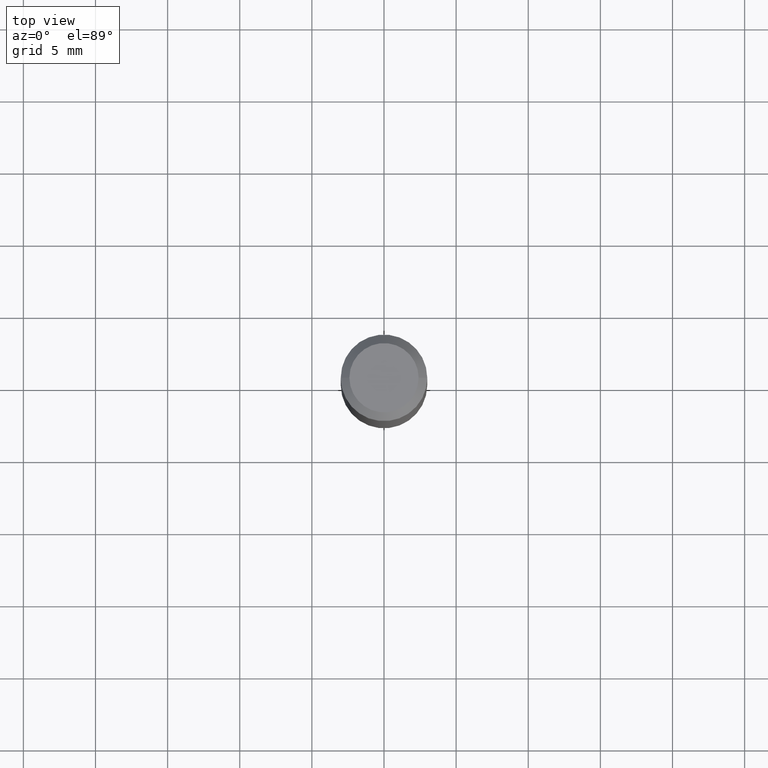
[diagram: clean part render]
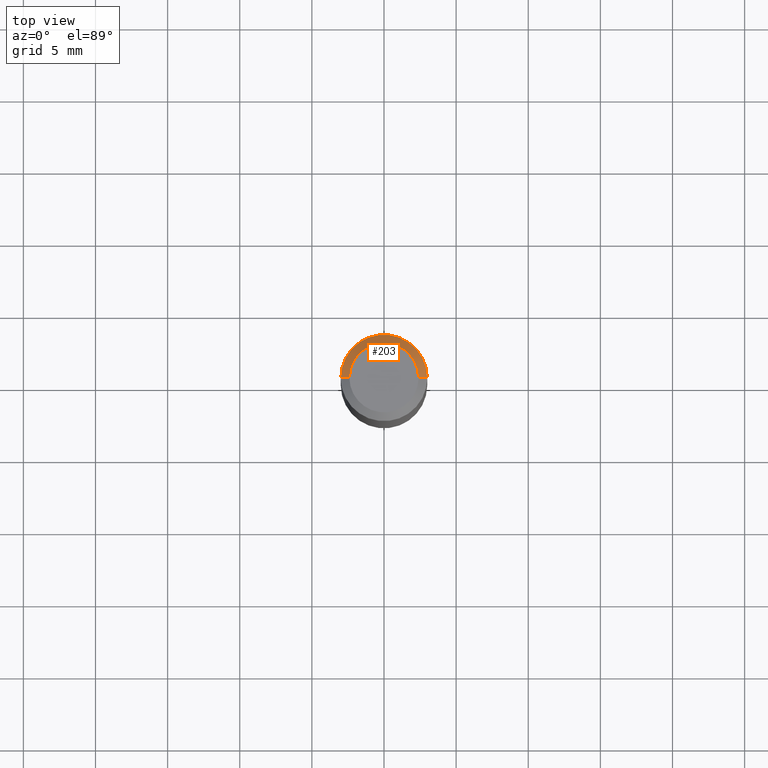
[diagram: same view with one face highlighted and labeled with its STEP entity id]
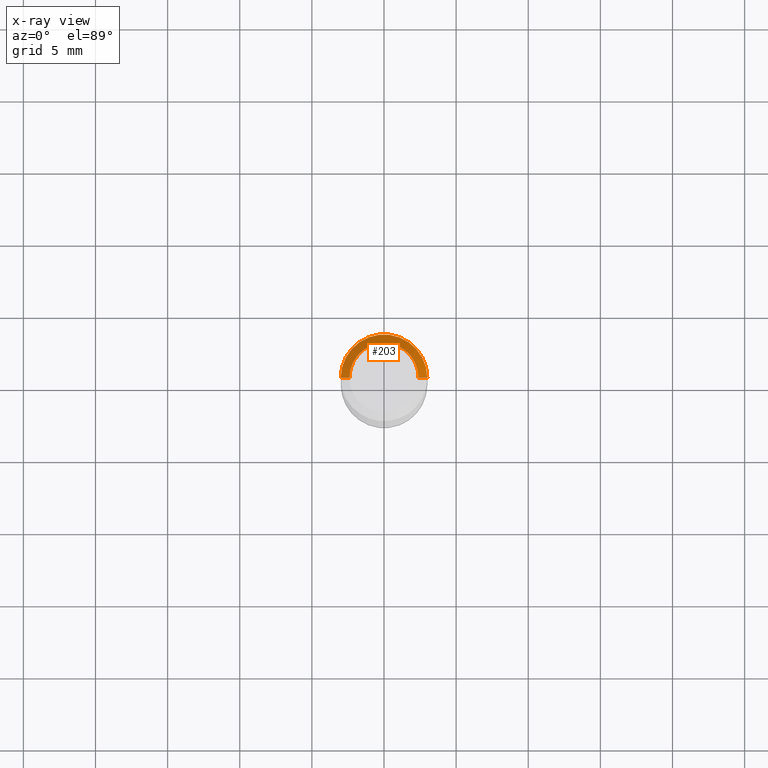
[diagram: x-ray of the same camera — body ghosted, the highlighted face saturated]
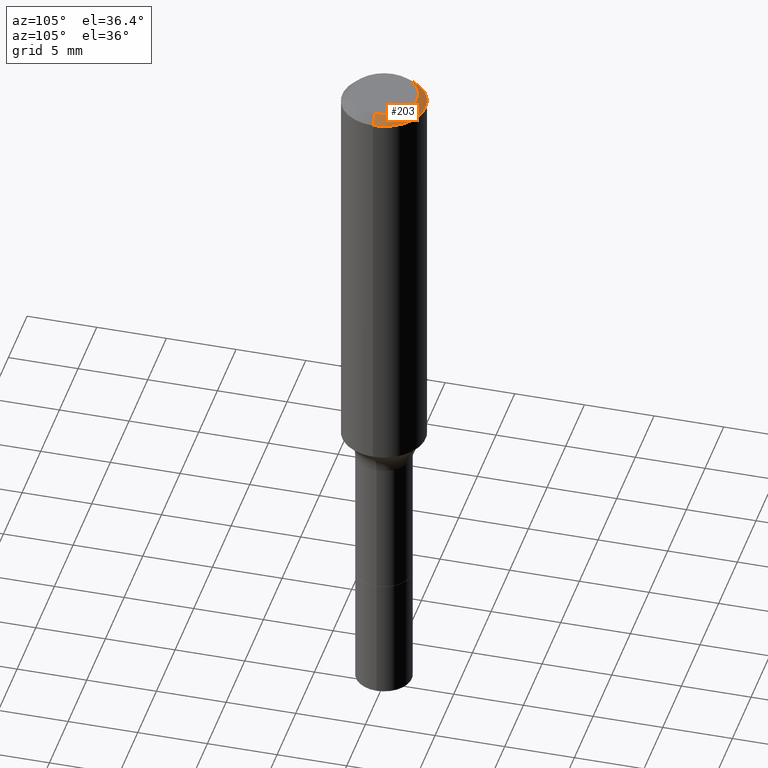
[diagram: same view with one face highlighted and labeled with its STEP entity id]
A machine part, top view. The second image highlights one B-rep face of the part: STEP entity #203.
The next image is the same camera in x-ray: the body ghosted, the highlighted face saturated — about 0% of this face is hidden behind the body in this view.
A second angle (auxiliary view) of the same face is appended — the face is thin or edge-on in the first view.
In plain terms, the highlighted conical surface has half-angle 45 deg.
Its self-contained STEP definition (entity closure, byte-faithful):
#7 = AXIS2_PLACEMENT_3D ( 'NONE', #456, #220, #366 ) ;
#12 = CONICAL_SURFACE ( 'NONE', #35, 0.1180999999999999966, 0.7853981633974461696 ) ;
#28 = DIRECTION ( 'NONE',  ( -1.000000000000000000, 6.982962677686266711E-15, 0.000000000000000000 ) ) ;
#35 = AXIS2_PLACEMENT_3D ( 'NONE', #232, #509, #28 ) ;
#44 = EDGE_CURVE ( 'NONE', #512, #200, #481, .T. ) ;
#49 = ORIENTED_EDGE ( 'NONE', *, *, #295, .F. ) ;
#50 = CARTESIAN_POINT ( 'NONE',  ( 0.09447999999999998066, -7.704367267948738690E-16, -3.085620075131172158E-17 ) ) ;
#75 = CARTESIAN_POINT ( 'NONE',  ( 5.776197320209328408E-31, -8.246878922347560526E-17, -0.02362000000000014435 ) ) ;
#142 = CARTESIAN_POINT ( 'NONE',  ( -0.1180999999999999966, 7.422191030112725094E-16, -0.02362000000000014435 ) ) ;
#162 = ORIENTED_EDGE ( 'NONE', *, *, #44, .F. ) ;
#165 = VERTEX_POINT ( 'NONE', #454 ) ;
#200 = VERTEX_POINT ( 'NONE', #506 ) ;
#203 = ADVANCED_FACE ( 'NONE', ( #419 ), #12, .T. ) ;
#220 = DIRECTION ( 'NONE',  ( -2.445468806185136597E-29, 3.491481338843145583E-15, 1.000000000000000000 ) ) ;
#232 = CARTESIAN_POINT ( 'NONE',  ( 5.776197320209328408E-31, -8.246878922347560526E-17, -0.02362000000000014435 ) ) ;
#242 = LINE ( 'NONE', #315, #446 ) ;
#254 = AXIS2_PLACEMENT_3D ( 'NONE', #75, #447, #404 ) ;
#278 = DIRECTION ( 'NONE',  ( 0.7071067811865460184, -7.319954787623251312E-15, -0.7071067811865490160 ) ) ;
#295 = EDGE_CURVE ( 'NONE', #200, #165, #309, .T. ) ;
#309 = LINE ( 'NONE', #142, #372 ) ;
#315 = CARTESIAN_POINT ( 'NONE',  ( 0.1180999999999999966, -8.926936027602933910E-16, -0.02362000000000014435 ) ) ;
#319 = CARTESIAN_POINT ( 'NONE',  ( 0.1180999999999999966, -9.071566814582237199E-16, -0.02362000000000014435 ) ) ;
#326 = ORIENTED_EDGE ( 'NONE', *, *, #489, .T. ) ;
#341 = CIRCLE ( 'NONE', #254, 0.1180999999999999966 ) ;
#366 = DIRECTION ( 'NONE',  ( 1.000000000000000000, -6.982962677686267499E-15, 4.875432709231658792E-29 ) ) ;
#370 = EDGE_CURVE ( 'NONE', #378, #165, #341, .T. ) ;
#372 = VECTOR ( 'NONE', #384, 39.37007874015748143 ) ;
#378 = VERTEX_POINT ( 'NONE', #319 ) ;
#384 = DIRECTION ( 'NONE',  ( -0.7071067811865460184, 2.468850131082241283E-15, -0.7071067811865490160 ) ) ;
#388 = EDGE_LOOP ( 'NONE', ( #162, #326, #473, #49 ) ) ;
#404 = DIRECTION ( 'NONE',  ( 1.000000000000000000, -6.982962677686266711E-15, 0.000000000000000000 ) ) ;
#419 = FACE_OUTER_BOUND ( 'NONE', #388, .T. ) ;
#446 = VECTOR ( 'NONE', #278, 39.37007874015748143 ) ;
#447 = DIRECTION ( 'NONE',  ( -2.445468806185136597E-29, 3.491481338843145583E-15, 1.000000000000000000 ) ) ;
#454 = CARTESIAN_POINT ( 'NONE',  ( -0.1180999999999999966, -1.204080411413810673E-15, -0.02362000000000014435 ) ) ;
#456 = CARTESIAN_POINT ( 'NONE',  ( 7.545787641473140628E-46, -1.077338491108201769E-31, -3.085620075131671975E-17 ) ) ;
#473 = ORIENTED_EDGE ( 'NONE', *, *, #370, .T. ) ;
#481 = CIRCLE ( 'NONE', #7, 0.09447999999999998066 ) ;
#489 = EDGE_CURVE ( 'NONE', #512, #378, #242, .T. ) ;
#506 = CARTESIAN_POINT ( 'NONE',  ( -0.09447999999999998066, 7.009847083995354710E-16, -3.085620075132147757E-17 ) ) ;
#509 = DIRECTION ( 'NONE',  ( 2.445468806185136597E-29, -3.491481338843145583E-15, -1.000000000000000000 ) ) ;
#512 = VERTEX_POINT ( 'NONE', #50 ) ;